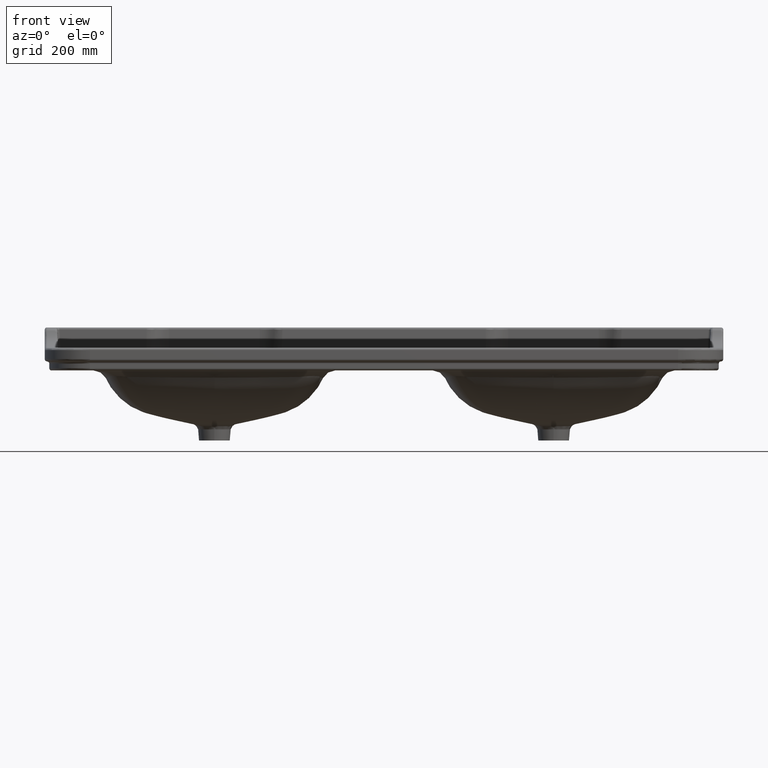
[diagram: clean part render]
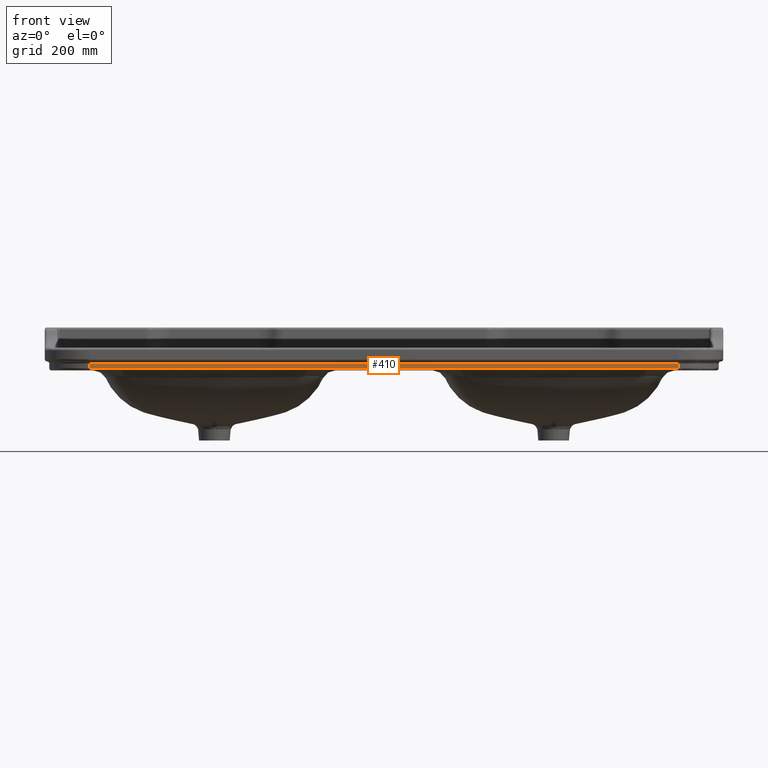
[diagram: same view with one face highlighted and labeled with its STEP entity id]
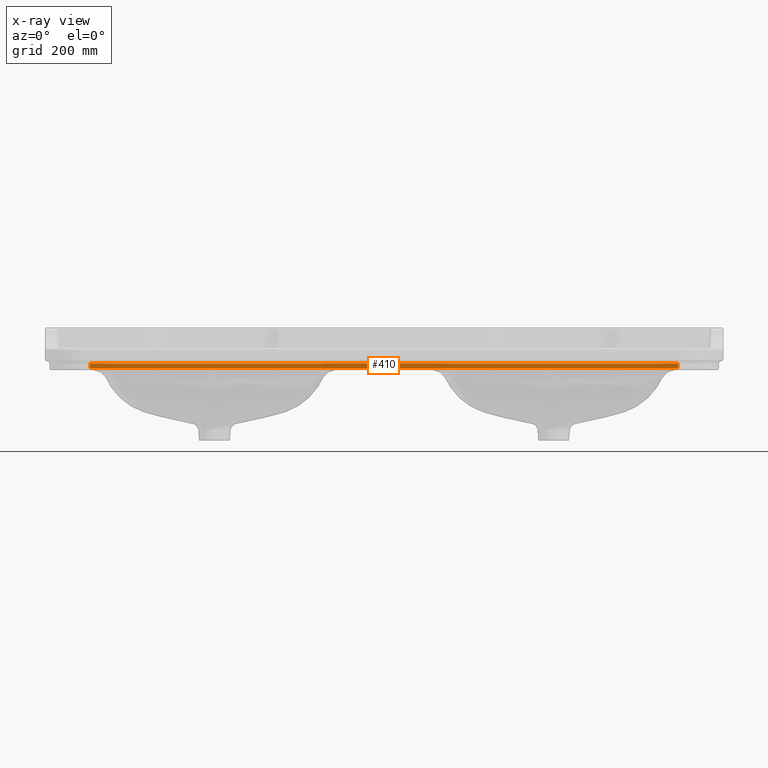
[diagram: x-ray of the same camera — body ghosted, the highlighted face saturated]
A machine part, front view. The second image highlights one B-rep face of the part: STEP entity #410.
The next image is the same camera in x-ray: the body ghosted, the highlighted face saturated — about 0% of this face is hidden behind the body in this view.
In plain terms, the highlighted planar face has unit normal (0, -1, 0).
Its self-contained STEP definition (entity closure, byte-faithful):
#410=ADVANCED_FACE($,(#1055),#7971,.T.);
#1055=FACE_OUTER_BOUND($,#1705,.T.);
#1705=EDGE_LOOP($,(#3648,#3649,#3650,#3651));
#3648=ORIENTED_EDGE($,*,*,#5373,.F.);
#3649=ORIENTED_EDGE($,*,*,#5867,.T.);
#3650=ORIENTED_EDGE($,*,*,#5345,.T.);
#3651=ORIENTED_EDGE($,*,*,#6248,.T.);
#5345=EDGE_CURVE($,#7011,#7013,#9182,.T.);
#5373=EDGE_CURVE($,#7030,#7032,#9192,.T.);
#5867=EDGE_CURVE($,#7030,#7011,#9424,.T.);
#6248=EDGE_CURVE($,#7013,#7032,#9634,.T.);
#7011=VERTEX_POINT($,#247979);
#7013=VERTEX_POINT($,#247981);
#7030=VERTEX_POINT($,#247998);
#7032=VERTEX_POINT($,#248000);
#7971=PLANE($,#10405);
#9182=B_SPLINE_CURVE_WITH_KNOTS($,1,(#11967,#11968),.UNSPECIFIED.,.F.,.F.,
(2,2),(2.5707963267949,3.5707963267949),.UNSPECIFIED.);
#9192=B_SPLINE_CURVE_WITH_KNOTS($,1,(#12041,#12042),.UNSPECIFIED.,.F.,.F.,
(2,2),(4.14159265358979,5.14159265358979),.UNSPECIFIED.);
#9424=B_SPLINE_CURVE_WITH_KNOTS($,1,(#18298,#18299),.UNSPECIFIED.,.F.,.F.,
(2,2),(0.,1.),.UNSPECIFIED.);
#9634=B_SPLINE_CURVE_WITH_KNOTS($,1,(#23469,#23470),.UNSPECIFIED.,.F.,.F.,
(2,2),(-1.,0.),.UNSPECIFIED.);
#10405=AXIS2_PLACEMENT_3D($,#198477,#10519,$);
#10519=DIRECTION($,(0.,-1.,0.));
#11967=CARTESIAN_POINT($,(994.085151657652,-270.848245622076,169.999999999963));
#11968=CARTESIAN_POINT($,(-305.914848342348,-270.848245622076,169.999999999963));
#12041=CARTESIAN_POINT($,(994.085151657654,-270.848245622076,159.999999999963));
#12042=CARTESIAN_POINT($,(-305.914848342348,-270.848245622076,159.999999999963));
#18298=CARTESIAN_POINT($,(994.085151657654,-270.848245622076,159.999999999963));
#18299=CARTESIAN_POINT($,(994.085151657652,-270.848245622076,169.999999999963));
#23469=CARTESIAN_POINT($,(-305.914848342348,-270.848245622076,169.999999999963));
#23470=CARTESIAN_POINT($,(-305.914848342348,-270.848245622076,159.999999999963));
#198477=CARTESIAN_POINT($,(-305.914848342348,-270.848245622076,159.999999999963));
#247979=CARTESIAN_POINT($,(994.085151657652,-270.848245622076,169.999999999963));
#247981=CARTESIAN_POINT($,(-305.914848342348,-270.848245622076,169.999999999963));
#247998=CARTESIAN_POINT($,(994.085151657654,-270.848245622076,159.999999999963));
#248000=CARTESIAN_POINT($,(-305.914848342348,-270.848245622076,159.999999999963));